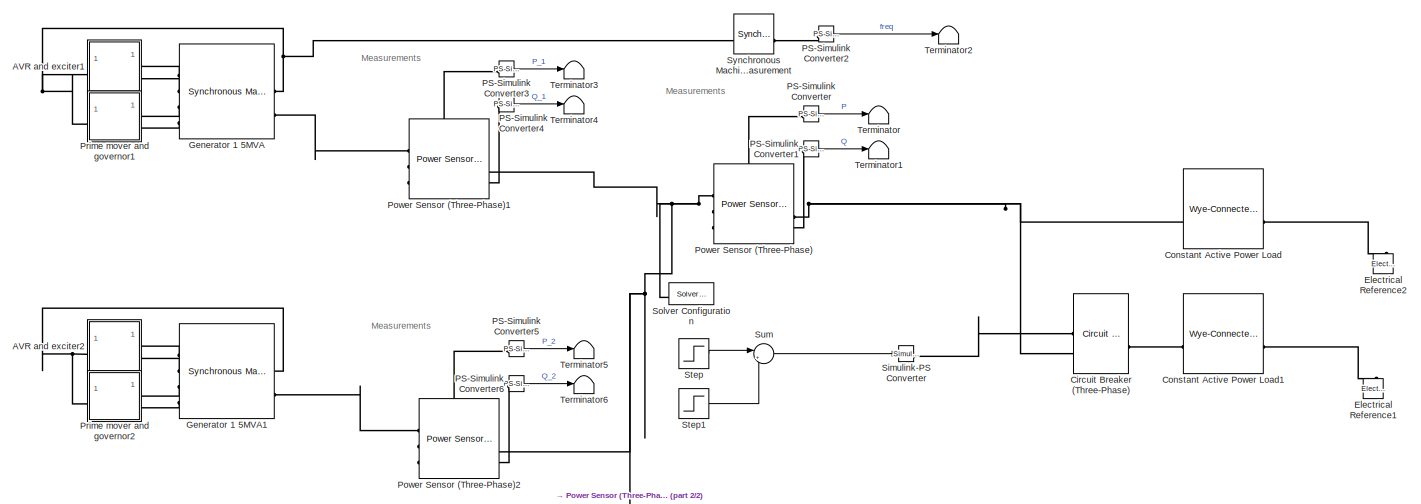
[diagram: root canvas - part 1/2, top right region]
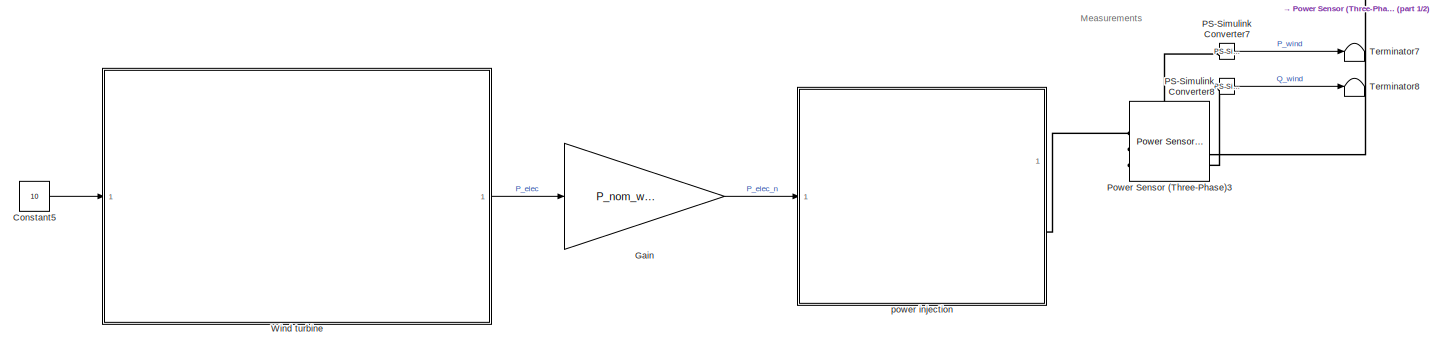
[diagram: root canvas - part 2/2, bottom center region]
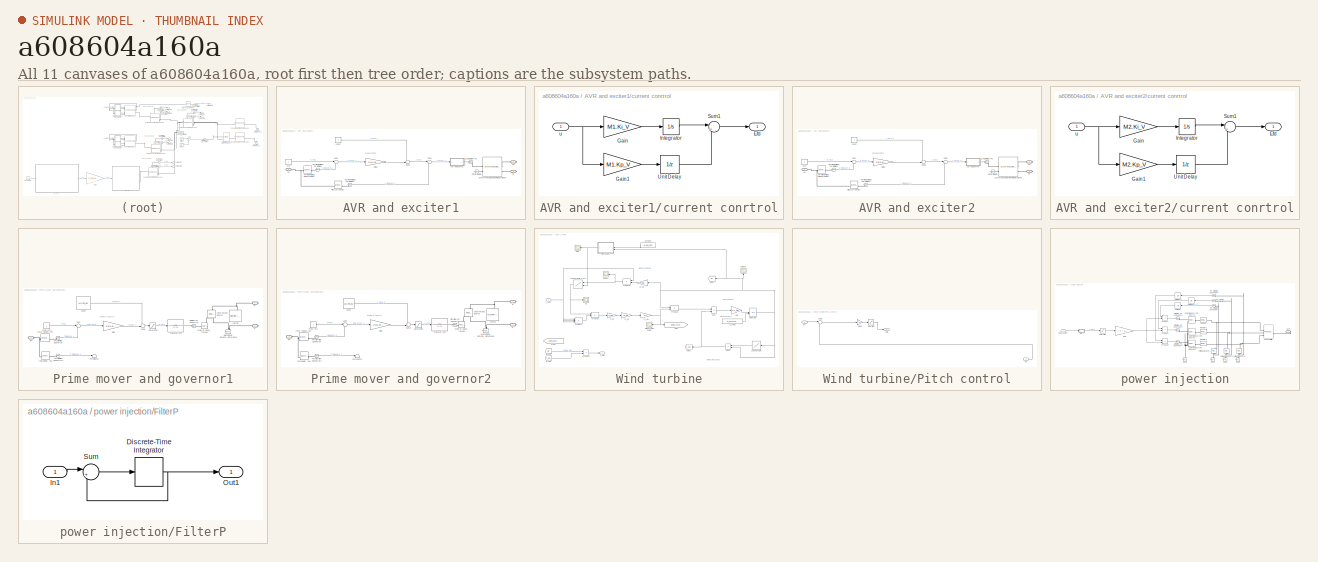
[diagram: thumbnail index - all 11 canvases of the model, root first then tree order]
MODEL slx_a608604a160a
KIND model
CONFIG AbsTol = auto
CONFIG EnableMultiTasking = off
CONFIG FixedStep = auto
CONFIG MaxStep = auto
CONFIG MinStep = auto
CONFIG RelTol = auto
CONFIG SampleTimeConstraint = Unconstrained
CONFIG SolverName = ode45
CONFIG StartTime = 0
CONFIG StopTime = 120
BLOCK [SubSystem] AVR and exciter1
  NameLocation = top
BLOCK [Reference] AVR and exciter1/E_FD Simulink-PS   REF=nesl_utility/Simulink-PS
Converter
  SourceBlock = nesl_utility/Simulink-PS\nConverter
  SourceType = Simulink-PS\nConverter
BLOCK [Gain] AVR and exciter1/Gain1
  Gain = 1/M1.droopV1
BLOCK [Reference] AVR and exciter1/PS Terminator  REF=fl_lib/Physical Signals/Sinks/PS Terminator
  NameLocation = top
  SourceBlock = fl_lib/Physical Signals/Sinks/PS Terminator
  SourceType = PS Terminator
BLOCK [Sum] AVR and exciter1/Sum
  Inputs = |+-
BLOCK [Sum] AVR and exciter1/Sum1
  Inputs = |+-
BLOCK [Sum] AVR and exciter1/Sum2
  Inputs = ++|
BLOCK [Reference] AVR and exciter1/Synchronous Machine Field Circuit (pu)  REF=ee_lib/Electromechanical/Synchronous/Synchronous Machine
Field Circuit
  SourceBlock = ee_lib/Electromechanical/Synchronous/Synchronous Machine\nField Circuit
  SourceType = Synchronous Machine\nField Circuit
BLOCK [Reference] AVR and exciter1/Terminal Voltage Measurement  REF=ee_lib/Electromechanical/Synchronous/Synchronous Machine
Measurement
  SourceBlock = ee_lib/Electromechanical/Synchronous/Synchronous Machine\nMeasurement
  SourceType = Synchronous Machine\nMeasurement
BLOCK [Reference] AVR and exciter1/Terminal Voltage PS-Simulink  REF=nesl_utility/PS-Simulink
Converter
  SourceBlock = nesl_utility/PS-Simulink\nConverter
  SourceType = PS-Simulink\nConverter
BLOCK [Reference] AVR and exciter1/Terminal Voltage PS-Simulink1  REF=nesl_utility/PS-Simulink
Converter
  SourceBlock = nesl_utility/PS-Simulink\nConverter
  SourceType = PS-Simulink\nConverter
BLOCK [Constant] AVR and exciter1/Vref
  NameLocation = top
BLOCK [Constant] AVR and exciter1/const
  NameLocation = top
BLOCK [SubSystem] AVR and exciter1/current conrtrol
BLOCK [Outport] AVR and exciter1/current conrtrol/Efd
BLOCK [Gain] AVR and exciter1/current conrtrol/Gain
  Gain = M1.Ki_V
BLOCK [Gain] AVR and exciter1/current conrtrol/Gain1
  Gain = M1.Kp_V
BLOCK [Integrator] AVR and exciter1/current conrtrol/Integrator
BLOCK [Sum] AVR and exciter1/current conrtrol/Sum1
  Inputs = |++
BLOCK [UnitDelay] AVR and exciter1/current conrtrol/Unit Delay
  HasFrameUpgradeWarning = on
  InitialCondition = 1
  SampleTime = -1
BLOCK [Inport] AVR and exciter1/current conrtrol/u
BLOCK [PMIOPort] AVR and exciter1/fd+
  Port = 2
  Side = Right
BLOCK [PMIOPort] AVR and exciter1/fd-
  Port = 3
  Side = Right
BLOCK [Reference] AVR and exciter1/field_current (pu)  REF=ee_lib/Electromechanical/Synchronous/Synchronous Machine
Measurement
  SourceBlock = ee_lib/Electromechanical/Synchronous/Synchronous Machine\nMeasurement
  SourceType = Synchronous Machine\nMeasurement
BLOCK [PMIOPort] AVR and exciter1/pu
  Side = Left
BLOCK [SubSystem] AVR and exciter2
  NameLocation = top
BLOCK [Reference] AVR and exciter2/E_FD Simulink-PS   REF=nesl_utility/Simulink-PS
Converter
  SourceBlock = nesl_utility/Simulink-PS\nConverter
  SourceType = Simulink-PS\nConverter
BLOCK [Gain] AVR and exciter2/Gain1
  Gain = 1/M2.droopV1
BLOCK [Reference] AVR and exciter2/PS Terminator  REF=fl_lib/Physical Signals/Sinks/PS Terminator
  NameLocation = top
  SourceBlock = fl_lib/Physical Signals/Sinks/PS Terminator
  SourceType = PS Terminator
BLOCK [Sum] AVR and exciter2/Sum
  Inputs = |+-
BLOCK [Sum] AVR and exciter2/Sum1
  Inputs = |+-
BLOCK [Sum] AVR and exciter2/Sum2
  Inputs = ++|
BLOCK [Reference] AVR and exciter2/Synchronous Machine Field Circuit (pu)  REF=ee_lib/Electromechanical/Synchronous/Synchronous Machine
Field Circuit
  SourceBlock = ee_lib/Electromechanical/Synchronous/Synchronous Machine\nField Circuit
  SourceType = Synchronous Machine\nField Circuit
BLOCK [Reference] AVR and exciter2/Terminal Voltage Measurement  REF=ee_lib/Electromechanical/Synchronous/Synchronous Machine
Measurement
  SourceBlock = ee_lib/Electromechanical/Synchronous/Synchronous Machine\nMeasurement
  SourceType = Synchronous Machine\nMeasurement
BLOCK [Reference] AVR and exciter2/Terminal Voltage PS-Simulink  REF=nesl_utility/PS-Simulink
Converter
  SourceBlock = nesl_utility/PS-Simulink\nConverter
  SourceType = PS-Simulink\nConverter
BLOCK [Reference] AVR and exciter2/Terminal Voltage PS-Simulink1  REF=nesl_utility/PS-Simulink
Converter
  SourceBlock = nesl_utility/PS-Simulink\nConverter
  SourceType = PS-Simulink\nConverter
BLOCK [Constant] AVR and exciter2/Vref
  NameLocation = top
BLOCK [Constant] AVR and exciter2/const
  NameLocation = top
BLOCK [SubSystem] AVR and exciter2/current conrtrol
BLOCK [Outport] AVR and exciter2/current conrtrol/Efd
BLOCK [Gain] AVR and exciter2/current conrtrol/Gain
  Gain = M2.Ki_V
BLOCK [Gain] AVR and exciter2/current conrtrol/Gain1
  Gain = M2.Kp_V
BLOCK [Integrator] AVR and exciter2/current conrtrol/Integrator
BLOCK [Sum] AVR and exciter2/current conrtrol/Sum1
  Inputs = |++
BLOCK [UnitDelay] AVR and exciter2/current conrtrol/Unit Delay
  HasFrameUpgradeWarning = on
  InitialCondition = 1
  SampleTime = -1
BLOCK [Inport] AVR and exciter2/current conrtrol/u
BLOCK [PMIOPort] AVR and exciter2/fd+
  Port = 2
  Side = Right
BLOCK [PMIOPort] AVR and exciter2/fd-
  Port = 3
  Side = Right
BLOCK [Reference] AVR and exciter2/field_current (pu)  REF=ee_lib/Electromechanical/Synchronous/Synchronous Machine
Measurement
  SourceBlock = ee_lib/Electromechanical/Synchronous/Synchronous Machine\nMeasurement
  SourceType = Synchronous Machine\nMeasurement
BLOCK [PMIOPort] AVR and exciter2/pu
  Side = Left
BLOCK [Reference] Circuit Breaker (Three-Phase)  REF=ee_lib/Switches & Breakers/Circuit Breaker
(Three-Phase)
  SourceBlock = ee_lib/Switches & Breakers/Circuit Breaker\n(Three-Phase)
  SourceType = Circuit Breaker\n(Three-Phase)
BLOCK [Reference] Constant Active Power Load  REF=ee_lib/Passive/RLC Assemblies/Wye-Connected Load
  SourceBlock = ee_lib/Passive/RLC Assemblies/Wye-Connected Load
  SourceType = Wye-Connected Load
BLOCK [Reference] Constant Active Power Load1  REF=ee_lib/Passive/RLC Assemblies/Wye-Connected Load
  SourceBlock = ee_lib/Passive/RLC Assemblies/Wye-Connected Load
  SourceType = Wye-Connected Load
BLOCK [Constant] Constant5
  Value = 10
BLOCK [Reference] Electrical Reference1  REF=fl_lib/Electrical/Electrical Elements/Electrical Reference
  NameLocation = right
  SourceBlock = fl_lib/Electrical/Electrical Elements/Electrical Reference
  SourceType = Electrical Reference
BLOCK [Reference] Electrical Reference2  REF=fl_lib/Electrical/Electrical Elements/Electrical Reference
  NameLocation = right
  SourceBlock = fl_lib/Electrical/Electrical Elements/Electrical Reference
  SourceType = Electrical Reference
BLOCK [Gain] Gain
  Gain = P_nom_wind / P_max_wind
BLOCK [Reference] Generator 1 5MVA  REF=ee_lib/Electromechanical/Synchronous/Synchronous Machine
Salient Pole
  SourceBlock = ee_lib/Electromechanical/Synchronous/Synchronous Machine\nSalient Pole
  SourceType = Synchronous Machine\nSalient Pole
BLOCK [Reference] Generator 1 5MVA1  REF=ee_lib/Electromechanical/Synchronous/Synchronous Machine
Salient Pole
  SourceBlock = ee_lib/Electromechanical/Synchronous/Synchronous Machine\nSalient Pole
  SourceType = Synchronous Machine\nSalient Pole
BLOCK [Reference] PS-Simulink Converter  REF=nesl_utility/PS-Simulink
Converter
  SourceBlock = nesl_utility/PS-Simulink\nConverter
  SourceType = PS-Simulink\nConverter
BLOCK [Reference] PS-Simulink Converter1  REF=nesl_utility/PS-Simulink
Converter
  SourceBlock = nesl_utility/PS-Simulink\nConverter
  SourceType = PS-Simulink\nConverter
BLOCK [Reference] PS-Simulink Converter2  REF=nesl_utility/PS-Simulink
Converter
  SourceBlock = nesl_utility/PS-Simulink\nConverter
  SourceType = PS-Simulink\nConverter
BLOCK [Reference] PS-Simulink Converter3  REF=nesl_utility/PS-Simulink
Converter
  SourceBlock = nesl_utility/PS-Simulink\nConverter
  SourceType = PS-Simulink\nConverter
BLOCK [Reference] PS-Simulink Converter4  REF=nesl_utility/PS-Simulink
Converter
  SourceBlock = nesl_utility/PS-Simulink\nConverter
  SourceType = PS-Simulink\nConverter
BLOCK [Reference] PS-Simulink Converter5  REF=nesl_utility/PS-Simulink
Converter
  SourceBlock = nesl_utility/PS-Simulink\nConverter
  SourceType = PS-Simulink\nConverter
BLOCK [Reference] PS-Simulink Converter6  REF=nesl_utility/PS-Simulink
Converter
  SourceBlock = nesl_utility/PS-Simulink\nConverter
  SourceType = PS-Simulink\nConverter
BLOCK [Reference] PS-Simulink Converter7  REF=nesl_utility/PS-Simulink
Converter
  SourceBlock = nesl_utility/PS-Simulink\nConverter
  SourceType = PS-Simulink\nConverter
BLOCK [Reference] PS-Simulink Converter8  REF=nesl_utility/PS-Simulink
Converter
  SourceBlock = nesl_utility/PS-Simulink\nConverter
  SourceType = PS-Simulink\nConverter
BLOCK [Reference] Power Sensor (Three-Phase)  REF=ee_lib/Sensors &
Transducers/Power Sensor
(Three-Phase)
  SourceBlock = ee_lib/Sensors &\nTransducers/Power Sensor\n(Three-Phase)
  SourceType = Power Sensor\n(Three-Phase)
BLOCK [Reference] Power Sensor (Three-Phase)1  REF=ee_lib/Sensors &
Transducers/Power Sensor
(Three-Phase)
  SourceBlock = ee_lib/Sensors &\nTransducers/Power Sensor\n(Three-Phase)
  SourceType = Power Sensor\n(Three-Phase)
BLOCK [Reference] Power Sensor (Three-Phase)2  REF=ee_lib/Sensors &
Transducers/Power Sensor
(Three-Phase)
  SourceBlock = ee_lib/Sensors &\nTransducers/Power Sensor\n(Three-Phase)
  SourceType = Power Sensor\n(Three-Phase)
BLOCK [Reference] Power Sensor (Three-Phase)3  REF=ee_lib/Sensors &
Transducers/Power Sensor
(Three-Phase)
  SourceBlock = ee_lib/Sensors &\nTransducers/Power Sensor\n(Three-Phase)
  SourceType = Power Sensor\n(Three-Phase)
BLOCK [SubSystem] Prime mover and governor1
BLOCK [PMIOPort] Prime mover and governor1/C
  Port = 2
  Side = Right
BLOCK [Constant] Prime mover and governor1/Freq ref1
  NameLocation = top
BLOCK [Gain] Prime mover and governor1/Gain
  Gain = 1/M1.droopP1
BLOCK [Reference] Prime mover and governor1/Ideal Torque Source  REF=fl_lib/Mechanical/Mechanical Sources/Ideal Torque Source
  NameLocation = left
  SourceBlock = fl_lib/Mechanical/Mechanical Sources/Ideal Torque Source
  SourceType = Ideal Torque Source
BLOCK [Reference] Prime mover and governor1/Inertia  REF=ee_lib/Electromechanical/Mechanical/Machine
Inertia
  NameLocation = right
  SourceBlock = ee_lib/Electromechanical/Mechanical/Machine\nInertia
  SourceType = Machine\nInertia
BLOCK [Reference] Prime mover and governor1/Mechanical Rotational Reference  REF=fl_lib/Mechanical/Rotational Elements/Mechanical
Rotational Reference
  NameLocation = right
  SourceBlock = fl_lib/Mechanical/Rotational Elements/Mechanical\nRotational Reference
  SourceType = Mechanical\nRotational Reference
BLOCK [Reference] Prime mover and governor1/PS-Simulink Converter  REF=nesl_utility/PS-Simulink
Converter
  SourceBlock = nesl_utility/PS-Simulink\nConverter
  SourceType = PS-Simulink\nConverter
BLOCK [Reference] Prime mover and governor1/PS-Simulink Converter1  REF=nesl_utility/PS-Simulink
Converter
  SourceBlock = nesl_utility/PS-Simulink\nConverter
  SourceType = PS-Simulink\nConverter
BLOCK [PMIOPort] Prime mover and governor1/R
  Side = Right
BLOCK [Saturate] Prime mover and governor1/Saturation
  LowerLimit = -1
  UpperLimit = 1
BLOCK [Reference] Prime mover and governor1/Simulink-PS Converter  REF=nesl_utility/Simulink-PS
Converter
  NameLocation = top
  SourceBlock = nesl_utility/Simulink-PS\nConverter
  SourceType = Simulink-PS\nConverter
BLOCK [Sum] Prime mover and governor1/Sum
  Inputs = |+-
  NameLocation = top
BLOCK [Sum] Prime mover and governor1/Sum3
  Inputs = ++|
BLOCK [Terminator] Prime mover and governor1/Terminator
BLOCK [TransferFcn] Prime mover and governor1/Transfer Fcn
  Denominator = [1 1]
BLOCK [Constant] Prime mover and governor1/const
  NameLocation = top
  Value = M1.P0_pu
BLOCK [PMIOPort] Prime mover and governor1/pu
  Port = 3
  Side = Left
BLOCK [Reference] Prime mover and governor1/real power (pu)  REF=ee_lib/Electromechanical/Synchronous/Synchronous Machine
Measurement
  SourceBlock = ee_lib/Electromechanical/Synchronous/Synchronous Machine\nMeasurement
  SourceType = Synchronous Machine\nMeasurement
BLOCK [Reference] Prime mover and governor1/rotor speed (pu)  REF=ee_lib/Electromechanical/Synchronous/Synchronous Machine
Measurement
  SourceBlock = ee_lib/Electromechanical/Synchronous/Synchronous Machine\nMeasurement
  SourceType = Synchronous Machine\nMeasurement
BLOCK [Reference] Prime mover and governor1/scale by base_torque  REF=fl_lib/Physical Signals/Functions/PS Gain
  SourceBlock = fl_lib/Physical Signals/Functions/PS Gain
  SourceType = PS Gain
BLOCK [SubSystem] Prime mover and governor2
BLOCK [PMIOPort] Prime mover and governor2/C
  Port = 2
  Side = Right
BLOCK [Constant] Prime mover and governor2/Freq ref1
  NameLocation = top
BLOCK [Gain] Prime mover and governor2/Gain
  Gain = 1/M2.droopP1
BLOCK [Reference] Prime mover and governor2/Ideal Torque Source  REF=fl_lib/Mechanical/Mechanical Sources/Ideal Torque Source
  NameLocation = left
  SourceBlock = fl_lib/Mechanical/Mechanical Sources/Ideal Torque Source
  SourceType = Ideal Torque Source
BLOCK [Reference] Prime mover and governor2/Inertia  REF=ee_lib/Electromechanical/Mechanical/Machine
Inertia
  NameLocation = right
  SourceBlock = ee_lib/Electromechanical/Mechanical/Machine\nInertia
  SourceType = Machine\nInertia
BLOCK [Reference] Prime mover and governor2/Mechanical Rotational Reference  REF=fl_lib/Mechanical/Rotational Elements/Mechanical
Rotational Reference
  NameLocation = right
  SourceBlock = fl_lib/Mechanical/Rotational Elements/Mechanical\nRotational Reference
  SourceType = Mechanical\nRotational Reference
BLOCK [Reference] Prime mover and governor2/PS-Simulink Converter  REF=nesl_utility/PS-Simulink
Converter
  SourceBlock = nesl_utility/PS-Simulink\nConverter
  SourceType = PS-Simulink\nConverter
BLOCK [Reference] Prime mover and governor2/PS-Simulink Converter1  REF=nesl_utility/PS-Simulink
Converter
  SourceBlock = nesl_utility/PS-Simulink\nConverter
  SourceType = PS-Simulink\nConverter
BLOCK [PMIOPort] Prime mover and governor2/R
  Side = Right
BLOCK [Saturate] Prime mover and governor2/Saturation
  LowerLimit = -1
  UpperLimit = 1
BLOCK [Reference] Prime mover and governor2/Simulink-PS Converter  REF=nesl_utility/Simulink-PS
Converter
  NameLocation = top
  SourceBlock = nesl_utility/Simulink-PS\nConverter
  SourceType = Simulink-PS\nConverter
BLOCK [Sum] Prime mover and governor2/Sum
  Inputs = |+-
  NameLocation = top
BLOCK [Sum] Prime mover and governor2/Sum3
  Inputs = ++|
BLOCK [Terminator] Prime mover and governor2/Terminator
BLOCK [TransferFcn] Prime mover and governor2/Transfer Fcn
  Denominator = [1 1]
BLOCK [Constant] Prime mover and governor2/const
  NameLocation = top
  Value = M2.P0_pu
BLOCK [PMIOPort] Prime mover and governor2/pu
  Port = 3
  Side = Left
BLOCK [Reference] Prime mover and governor2/real power (pu)  REF=ee_lib/Electromechanical/Synchronous/Synchronous Machine
Measurement
  SourceBlock = ee_lib/Electromechanical/Synchronous/Synchronous Machine\nMeasurement
  SourceType = Synchronous Machine\nMeasurement
BLOCK [Reference] Prime mover and governor2/rotor speed (pu)  REF=ee_lib/Electromechanical/Synchronous/Synchronous Machine
Measurement
  SourceBlock = ee_lib/Electromechanical/Synchronous/Synchronous Machine\nMeasurement
  SourceType = Synchronous Machine\nMeasurement
BLOCK [Reference] Prime mover and governor2/scale by base_torque  REF=fl_lib/Physical Signals/Functions/PS Gain
  SourceBlock = fl_lib/Physical Signals/Functions/PS Gain
  SourceType = PS Gain
BLOCK [Reference] Simulink-PS Converter  REF=nesl_utility/Simulink-PS
Converter
  SourceBlock = nesl_utility/Simulink-PS\nConverter
  SourceType = Simulink-PS\nConverter
BLOCK [Reference] Solver Configuration  REF=nesl_utility/Solver
Configuration
  SourceBlock = nesl_utility/Solver\nConfiguration
  SourceType = Solver\nConfiguration
BLOCK [Step] Step
  After = 0
  Before = 1
  SampleTime = 0
  Time = close_time
BLOCK [Step] Step1
  SampleTime = 0
  Time = open_time
BLOCK [Sum] Sum
  Inputs = |++
BLOCK [Reference] Synchronous Machine Measurement  REF=ee_lib/Electromechanical/Synchronous/Synchronous Machine
Measurement
  SourceBlock = ee_lib/Electromechanical/Synchronous/Synchronous Machine\nMeasurement
  SourceType = Synchronous Machine\nMeasurement
BLOCK [Terminator] Terminator
BLOCK [Terminator] Terminator1
BLOCK [Terminator] Terminator2
BLOCK [Terminator] Terminator3
BLOCK [Terminator] Terminator4
BLOCK [Terminator] Terminator5
BLOCK [Terminator] Terminator6
BLOCK [Terminator] Terminator7
BLOCK [Terminator] Terminator8
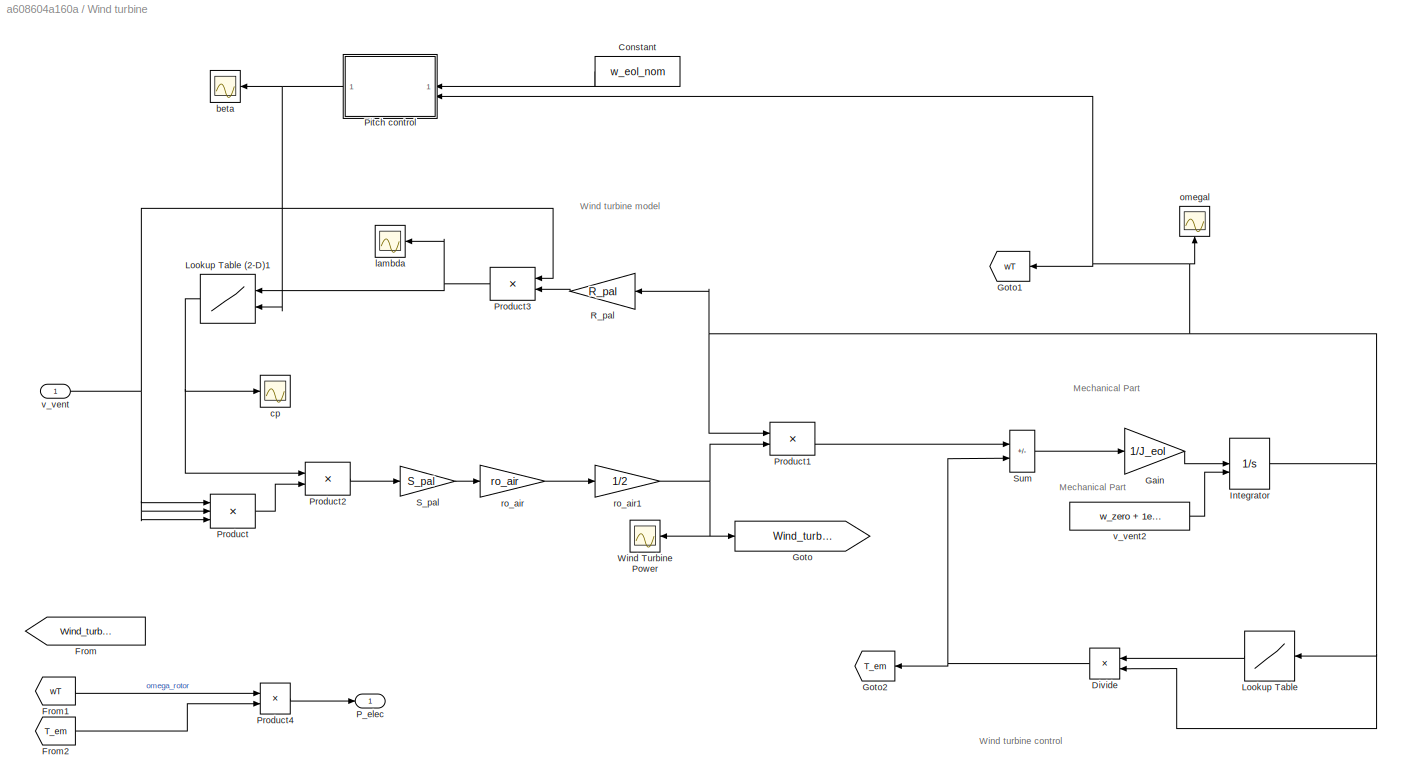
BLOCK [SubSystem] Wind turbine
BLOCK [Constant] Wind turbine/Constant
  Value = w_eol_nom
BLOCK [Product] Wind turbine/Divide
  InputSameDT = on
  Inputs = */
  OutDataTypeStr = Inherit: Same as first input
  RndMeth = Zero
BLOCK [From] Wind turbine/From
  CloseFcn = tagdialog Close
  GotoTag = Wind_turbine_Power
BLOCK [From] Wind turbine/From1
  CloseFcn = tagdialog Close
  GotoTag = wT
BLOCK [From] Wind turbine/From2
  CloseFcn = tagdialog Close
  GotoTag = T_em
BLOCK [Gain] Wind turbine/Gain
  Gain = 1/J_eol
  OutDataTypeStr = Inherit: Same as input
  ParamDataTypeStr = Inherit: Same as input
  SaturateOnIntegerOverflow = on
BLOCK [Goto] Wind turbine/Goto
  GotoTag = Wind_turbine_Power
BLOCK [Goto] Wind turbine/Goto1
  GotoTag = wT
BLOCK [Goto] Wind turbine/Goto2
  GotoTag = T_em
BLOCK [Integrator] Wind turbine/Integrator
  InitialConditionSource = external
BLOCK [Lookup] Wind turbine/Lookup Table
  InputValues = omega_tab
  Table = P_opt_tab2
BLOCK [Lookup2D] Wind turbine/Lookup Table (2-D)1
  ColumnIndex = beta_ref
  RowIndex = lambda_ref
  Table = Cp_ref
BLOCK [Outport] Wind turbine/P_elec
BLOCK [SubSystem] Wind turbine/Pitch control
BLOCK [Gain] Wind turbine/Pitch control/Gain1
  Gain = -200
BLOCK [Inport] Wind turbine/Pitch control/In1
BLOCK [Inport] Wind turbine/Pitch control/In2
  Port = 2
BLOCK [Outport] Wind turbine/Pitch control/Out1
BLOCK [Saturate] Wind turbine/Pitch control/Saturation
  LowerLimit = 0
  UpperLimit = inf
BLOCK [Sum] Wind turbine/Pitch control/Sum1
  Inputs = |+-
BLOCK [Product] Wind turbine/Product
  InputSameDT = on
  Inputs = 3
  OutDataTypeStr = Inherit: Same as first input
  RndMeth = Zero
  SaturateOnIntegerOverflow = on
BLOCK [Product] Wind turbine/Product1
  InputSameDT = on
  Inputs = /*
  OutDataTypeStr = Inherit: Same as first input
  RndMeth = Zero
  SaturateOnIntegerOverflow = on
BLOCK [Product] Wind turbine/Product2
  InputSameDT = on
  OutDataTypeStr = Inherit: Same as first input
  RndMeth = Zero
  SaturateOnIntegerOverflow = on
BLOCK [Product] Wind turbine/Product3
  InputSameDT = on
  Inputs = /*
  OutDataTypeStr = Inherit: Same as first input
  RndMeth = Zero
  SaturateOnIntegerOverflow = on
BLOCK [Product] Wind turbine/Product4
BLOCK [Gain] Wind turbine/R_pal
  Gain = R_pal
  OutDataTypeStr = Inherit: Same as input
  ParamDataTypeStr = Inherit: Same as input
  SaturateOnIntegerOverflow = on
BLOCK [Gain] Wind turbine/S_pal
  Gain = S_pal
  OutDataTypeStr = Inherit: Same as input
  ParamDataTypeStr = Inherit: Same as input
  SaturateOnIntegerOverflow = on
BLOCK [Sum] Wind turbine/Sum
  IconShape = rectangular
  InputSameDT = on
  Inputs = +-
  OutDataTypeStr = Inherit: Same as first input
  SaturateOnIntegerOverflow = on
BLOCK [Scope] Wind turbine/Wind Turbine Power
  Floating = off
  NameLocation = left
  NumInputPorts = 1
  ScopeSpecificationString = Simulink.scopes.TimeScopeBlockCfg('CurrentConfiguration', extmgr.ConfigurationSet(extmgr.Configuration('Core','General UI',true),extmgr.Configuration('Core','Source UI',true),extmgr.Configuration('Sources','WiredSimulink',true,'DataLoggingVariableName','ScopeData3'),extmgr.Configuration('Visuals','Time Domain',true,'SerializedDisplays',{struct('MinYLimReal','8318.13591','MaxYLimReal','263665.12868...<+1396ch>
BLOCK [Scope] Wind turbine/beta
  Floating = off
  NumInputPorts = 1
  ScopeSpecificationString = Simulink.scopes.TimeScopeBlockCfg('CurrentConfiguration', extmgr.ConfigurationSet(extmgr.Configuration('Core','General UI',true),extmgr.Configuration('Core','Source UI',true),extmgr.Configuration('Sources','WiredSimulink',true,'DataLoggingVariableName','ScopeData4'),extmgr.Configuration('Visuals','Time Domain',true,'SerializedDisplays',{struct('MinYLimReal','-1.40555','MaxYLimReal','12.64997','YLa...<+1409ch>
BLOCK [Scope] Wind turbine/cp
  Floating = off
  NumInputPorts = 1
  ScopeSpecificationString = Simulink.scopes.TimeScopeBlockCfg('CurrentConfiguration', extmgr.ConfigurationSet(extmgr.Configuration('Core','General UI',true),extmgr.Configuration('Core','Source UI',true),extmgr.Configuration('Sources','WiredSimulink',true,'DataLoggingVariableName','ScopeData1','DataLoggingSaveFormat','StructureWithTime','DataLoggingDecimation','1','DataLoggingDecimateData',true),extmgr.Configuration('Visuals'...<+1723ch>
BLOCK [Scope] Wind turbine/lambda
  Floating = off
  NumInputPorts = 1
  ScopeSpecificationString = Simulink.scopes.TimeScopeBlockCfg('CurrentConfiguration', extmgr.ConfigurationSet(extmgr.Configuration('Core','General UI',true),extmgr.Configuration('Core','Source UI',true),extmgr.Configuration('Sources','WiredSimulink',true,'DataLoggingVariableName','ScopeData2','DataLoggingSaveFormat','StructureWithTime','DataLoggingDecimation','1','DataLoggingDecimateData',true),extmgr.Configuration('Visuals'...<+1704ch>
BLOCK [Scope] Wind turbine/omegal  
  Floating = off
  NameLocation = left
  NumInputPorts = 1
  ScopeSpecificationString = Simulink.scopes.TimeScopeBlockCfg('CurrentConfiguration', extmgr.ConfigurationSet(extmgr.Configuration('Core','General UI',true),extmgr.Configuration('Core','Source UI',true),extmgr.Configuration('Sources','WiredSimulink',true,'DataLogging',true,'DataLoggingVariableName','omega_pal','DataLoggingSaveFormat','Array','DataLoggingMaxPoints','2000','DataLoggingDecimation','1','DataLoggingDecimateData',...<+1790ch>
BLOCK [Gain] Wind turbine/ro_air
  Gain = ro_air
  OutDataTypeStr = Inherit: Same as input
  ParamDataTypeStr = Inherit: Same as input
  SaturateOnIntegerOverflow = on
BLOCK [Gain] Wind turbine/ro_air1
  Gain = 1/2
  OutDataTypeStr = Inherit: Same as input
  ParamDataTypeStr = Inherit: Same as input
  SaturateOnIntegerOverflow = on
BLOCK [Inport] Wind turbine/v_vent
BLOCK [Constant] Wind turbine/v_vent2
  Value = w_zero + 1e-6
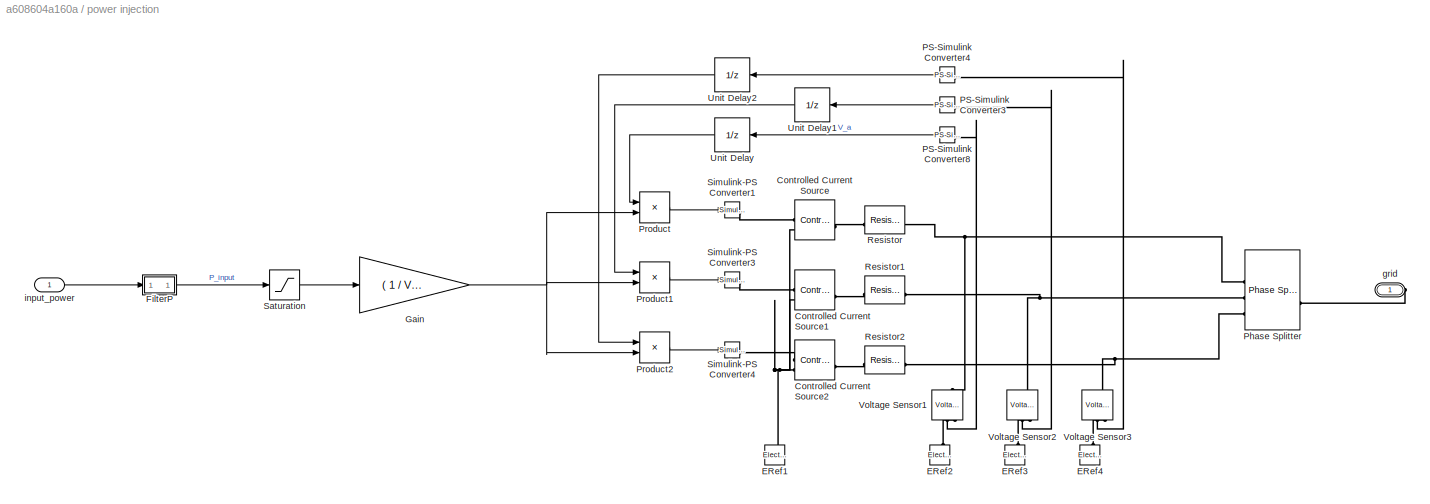
BLOCK [SubSystem] power injection
BLOCK [Reference] power injection/Controlled Current Source  REF=fl_lib/Electrical/Electrical Sources/Controlled Current
Source
  SourceBlock = fl_lib/Electrical/Electrical Sources/Controlled Current\nSource
  SourceType = Controlled Current\nSource
BLOCK [Reference] power injection/Controlled Current Source1  REF=fl_lib/Electrical/Electrical Sources/Controlled Current
Source
  SourceBlock = fl_lib/Electrical/Electrical Sources/Controlled Current\nSource
  SourceType = Controlled Current\nSource
BLOCK [Reference] power injection/Controlled Current Source2  REF=fl_lib/Electrical/Electrical Sources/Controlled Current
Source
  SourceBlock = fl_lib/Electrical/Electrical Sources/Controlled Current\nSource
  SourceType = Controlled Current\nSource
BLOCK [Reference] power injection/ERef1  REF=fl_lib/Electrical/Electrical Elements/Electrical Reference
  NameLocation = right
  SourceBlock = fl_lib/Electrical/Electrical Elements/Electrical Reference
  SourceType = Electrical Reference
BLOCK [Reference] power injection/ERef2  REF=fl_lib/Electrical/Electrical Elements/Electrical Reference
  NameLocation = right
  SourceBlock = fl_lib/Electrical/Electrical Elements/Electrical Reference
  SourceType = Electrical Reference
BLOCK [Reference] power injection/ERef3  REF=fl_lib/Electrical/Electrical Elements/Electrical Reference
  NameLocation = right
  SourceBlock = fl_lib/Electrical/Electrical Elements/Electrical Reference
  SourceType = Electrical Reference
BLOCK [Reference] power injection/ERef4  REF=fl_lib/Electrical/Electrical Elements/Electrical Reference
  NameLocation = right
  SourceBlock = fl_lib/Electrical/Electrical Elements/Electrical Reference
  SourceType = Electrical Reference
BLOCK [SubSystem] power injection/FilterP
BLOCK [DiscreteIntegrator] power injection/FilterP/Discrete-Time Integrator
  ICPrevOutput = DiscIntNeverNeededParam
  ICPrevScaledInput = DiscIntNeverNeededParam
  InitialConditionSetting = Auto
  SampleTime = -1
  gainval = 20
BLOCK [Inport] power injection/FilterP/In1
BLOCK [Outport] power injection/FilterP/Out1
BLOCK [Sum] power injection/FilterP/Sum
  Inputs = |+-
BLOCK [Gain] power injection/Gain
  Gain = ( 1 / V_ref ) ^ 2
BLOCK [Reference] power injection/PS-Simulink Converter3  REF=nesl_utility/PS-Simulink
Converter
  NameLocation = top
  SourceBlock = nesl_utility/PS-Simulink\nConverter
  SourceType = PS-Simulink\nConverter
BLOCK [Reference] power injection/PS-Simulink Converter4  REF=nesl_utility/PS-Simulink
Converter
  NameLocation = top
  SourceBlock = nesl_utility/PS-Simulink\nConverter
  SourceType = PS-Simulink\nConverter
BLOCK [Reference] power injection/PS-Simulink Converter8  REF=nesl_utility/PS-Simulink
Converter
  NameLocation = top
  SourceBlock = nesl_utility/PS-Simulink\nConverter
  SourceType = PS-Simulink\nConverter
BLOCK [Reference] power injection/Phase Splitter  REF=ee_lib/Connectors &
References/Phase Splitter
  SourceBlock = ee_lib/Connectors &\nReferences/Phase Splitter
  SourceType = Phase Splitter
BLOCK [Product] power injection/Product
BLOCK [Product] power injection/Product1
BLOCK [Product] power injection/Product2
BLOCK [Reference] power injection/Resistor  REF=fl_lib/Electrical/Electrical Elements/Resistor
  SourceBlock = fl_lib/Electrical/Electrical Elements/Resistor
  SourceType = Resistor
BLOCK [Reference] power injection/Resistor1  REF=fl_lib/Electrical/Electrical Elements/Resistor
  SourceBlock = fl_lib/Electrical/Electrical Elements/Resistor
  SourceType = Resistor
BLOCK [Reference] power injection/Resistor2  REF=fl_lib/Electrical/Electrical Elements/Resistor
  SourceBlock = fl_lib/Electrical/Electrical Elements/Resistor
  SourceType = Resistor
BLOCK [Saturate] power injection/Saturation
  LowerLimit = 0
  UpperLimit = P_nom_wind
BLOCK [Reference] power injection/Simulink-PS Converter1  REF=nesl_utility/Simulink-PS
Converter
  SourceBlock = nesl_utility/Simulink-PS\nConverter
  SourceType = Simulink-PS\nConverter
BLOCK [Reference] power injection/Simulink-PS Converter3  REF=nesl_utility/Simulink-PS
Converter
  SourceBlock = nesl_utility/Simulink-PS\nConverter
  SourceType = Simulink-PS\nConverter
BLOCK [Reference] power injection/Simulink-PS Converter4  REF=nesl_utility/Simulink-PS
Converter
  SourceBlock = nesl_utility/Simulink-PS\nConverter
  SourceType = Simulink-PS\nConverter
BLOCK [UnitDelay] power injection/Unit Delay
  HasFrameUpgradeWarning = on
  SampleTime = -1
BLOCK [UnitDelay] power injection/Unit Delay1
  HasFrameUpgradeWarning = on
  SampleTime = -1
BLOCK [UnitDelay] power injection/Unit Delay2
  HasFrameUpgradeWarning = on
  SampleTime = -1
BLOCK [Reference] power injection/Voltage Sensor1  REF=fl_lib/Electrical/Electrical Sensors/Voltage Sensor
  NameLocation = right
  SourceBlock = fl_lib/Electrical/Electrical Sensors/Voltage Sensor
  SourceType = Voltage Sensor
BLOCK [Reference] power injection/Voltage Sensor2  REF=fl_lib/Electrical/Electrical Sensors/Voltage Sensor
  NameLocation = right
  SourceBlock = fl_lib/Electrical/Electrical Sensors/Voltage Sensor
  SourceType = Voltage Sensor
BLOCK [Reference] power injection/Voltage Sensor3  REF=fl_lib/Electrical/Electrical Sensors/Voltage Sensor
  NameLocation = right
  SourceBlock = fl_lib/Electrical/Electrical Sensors/Voltage Sensor
  SourceType = Voltage Sensor
BLOCK [PMIOPort] power injection/grid
  Side = Right
BLOCK [Inport] power injection/input_power
ANNOTATION (root): Measurements
ANNOTATION AVR and exciter1: Droop V control
ANNOTATION AVR and exciter2: Droop V control
ANNOTATION Prime mover and governor1: Droop P control
ANNOTATION Prime mover and governor2: Droop P control
ANNOTATION Wind turbine: Mechanical Part
ANNOTATION Wind turbine: Wind turbine control
ANNOTATION Wind turbine: Wind turbine model
LINE AVR and exciter1/Gain1:1 -> AVR and exciter1/Sum2:2
LINE AVR and exciter1/Sum1:1 -> AVR and exciter1/current conrtrol:1
LINE AVR and exciter1/Sum2:1 -> AVR and exciter1/Sum1:1
LINE AVR and exciter1/Sum:1 -> AVR and exciter1/Gain1:1
LINE AVR and exciter1/Terminal Voltage PS-Simulink1:1 -> AVR and exciter1/Sum1:2
LINE AVR and exciter1/Terminal Voltage PS-Simulink:1 -> AVR and exciter1/Sum:2
LINE AVR and exciter1/Vref:1 -> AVR and exciter1/Sum:1
LINE AVR and exciter1/const:1 -> AVR and exciter1/Sum2:1
LINE AVR and exciter1/current conrtrol/Gain1:1 -> AVR and exciter1/current conrtrol/Unit Delay:1
LINE AVR and exciter1/current conrtrol/Gain:1 -> AVR and exciter1/current conrtrol/Integrator:1
LINE AVR and exciter1/current conrtrol/Integrator:1 -> AVR and exciter1/current conrtrol/Sum1:1
LINE AVR and exciter1/current conrtrol/Sum1:1 -> AVR and exciter1/current conrtrol/Efd:1
LINE AVR and exciter1/current conrtrol/Unit Delay:1 -> AVR and exciter1/current conrtrol/Sum1:2
NET AVR and exciter1/current conrtrol/u:1 -> AVR and exciter1/current conrtrol/Gain1:1, AVR and exciter1/current conrtrol/Gain:1
LINE AVR and exciter1/current conrtrol:1 -> AVR and exciter1/E_FD Simulink-PS :1
LINE AVR and exciter2/Gain1:1 -> AVR and exciter2/Sum2:2
LINE AVR and exciter2/Sum1:1 -> AVR and exciter2/current conrtrol:1
LINE AVR and exciter2/Sum2:1 -> AVR and exciter2/Sum1:1
LINE AVR and exciter2/Sum:1 -> AVR and exciter2/Gain1:1
LINE AVR and exciter2/Terminal Voltage PS-Simulink1:1 -> AVR and exciter2/Sum1:2
LINE AVR and exciter2/Terminal Voltage PS-Simulink:1 -> AVR and exciter2/Sum:2
LINE AVR and exciter2/Vref:1 -> AVR and exciter2/Sum:1
LINE AVR and exciter2/const:1 -> AVR and exciter2/Sum2:1
LINE AVR and exciter2/current conrtrol/Gain1:1 -> AVR and exciter2/current conrtrol/Unit Delay:1
LINE AVR and exciter2/current conrtrol/Gain:1 -> AVR and exciter2/current conrtrol/Integrator:1
LINE AVR and exciter2/current conrtrol/Integrator:1 -> AVR and exciter2/current conrtrol/Sum1:1
LINE AVR and exciter2/current conrtrol/Sum1:1 -> AVR and exciter2/current conrtrol/Efd:1
LINE AVR and exciter2/current conrtrol/Unit Delay:1 -> AVR and exciter2/current conrtrol/Sum1:2
NET AVR and exciter2/current conrtrol/u:1 -> AVR and exciter2/current conrtrol/Gain1:1, AVR and exciter2/current conrtrol/Gain:1
LINE AVR and exciter2/current conrtrol:1 -> AVR and exciter2/E_FD Simulink-PS :1
LINE Constant5:1 -> Wind turbine:1
LINE Gain:1 -> power injection:1
LINE PS-Simulink Converter1:1 -> Terminator1:1
LINE PS-Simulink Converter2:1 -> Terminator2:1
LINE PS-Simulink Converter3:1 -> Terminator3:1
LINE PS-Simulink Converter4:1 -> Terminator4:1
LINE PS-Simulink Converter5:1 -> Terminator5:1
LINE PS-Simulink Converter6:1 -> Terminator6:1
LINE PS-Simulink Converter7:1 -> Terminator7:1
LINE PS-Simulink Converter8:1 -> Terminator8:1
LINE PS-Simulink Converter:1 -> Terminator:1
LINE Prime mover and governor1/Freq ref1:1 -> Prime mover and governor1/Sum:1
LINE Prime mover and governor1/Gain:1 -> Prime mover and governor1/Sum3:2
LINE Prime mover and governor1/PS-Simulink Converter1:1 -> Prime mover and governor1/Terminator:1
LINE Prime mover and governor1/PS-Simulink Converter:1 -> Prime mover and governor1/Sum:2
LINE Prime mover and governor1/Saturation:1 -> Prime mover and governor1/Transfer Fcn:1
LINE Prime mover and governor1/Sum3:1 -> Prime mover and governor1/Saturation:1
LINE Prime mover and governor1/Sum:1 -> Prime mover and governor1/Gain:1
LINE Prime mover and governor1/Transfer Fcn:1 -> Prime mover and governor1/Simulink-PS Converter:1
LINE Prime mover and governor1/const:1 -> Prime mover and governor1/Sum3:1
LINE Prime mover and governor2/Freq ref1:1 -> Prime mover and governor2/Sum:1
LINE Prime mover and governor2/Gain:1 -> Prime mover and governor2/Sum3:2
LINE Prime mover and governor2/PS-Simulink Converter1:1 -> Prime mover and governor2/Terminator:1
LINE Prime mover and governor2/PS-Simulink Converter:1 -> Prime mover and governor2/Sum:2
LINE Prime mover and governor2/Saturation:1 -> Prime mover and governor2/Transfer Fcn:1
LINE Prime mover and governor2/Sum3:1 -> Prime mover and governor2/Saturation:1
LINE Prime mover and governor2/Sum:1 -> Prime mover and governor2/Gain:1
LINE Prime mover and governor2/Transfer Fcn:1 -> Prime mover and governor2/Simulink-PS Converter:1
LINE Prime mover and governor2/const:1 -> Prime mover and governor2/Sum3:1
LINE Step1:1 -> Sum:2
LINE Step:1 -> Sum:1
LINE Sum:1 -> Simulink-PS Converter:1
LINE Wind turbine/Constant:1 -> Wind turbine/Pitch control:1
NET Wind turbine/Divide:1 -> Wind turbine/Goto2:1, Wind turbine/Sum:2
LINE Wind turbine/From1:1 -> Wind turbine/Product4:1
LINE Wind turbine/From2:1 -> Wind turbine/Product4:2
LINE Wind turbine/Gain:1 -> Wind turbine/Integrator:1
NET Wind turbine/Integrator:1 -> Wind turbine/Divide:2, Wind turbine/Goto1:1, Wind turbine/Lookup Table:1, Wind turbine/Pitch control:2, Wind turbine/Product1:1, Wind turbine/R_pal:1, Wind turbine/omegal  :1
NET Wind turbine/Lookup Table (2-D)1:1 -> Wind turbine/Product2:1, Wind turbine/cp:1
LINE Wind turbine/Lookup Table:1 -> Wind turbine/Divide:1
LINE Wind turbine/Pitch control/Gain1:1 -> Wind turbine/Pitch control/Saturation:1
LINE Wind turbine/Pitch control/In1:1 -> Wind turbine/Pitch control/Sum1:1
LINE Wind turbine/Pitch control/In2:1 -> Wind turbine/Pitch control/Sum1:2
LINE Wind turbine/Pitch control/Saturation:1 -> Wind turbine/Pitch control/Out1:1
LINE Wind turbine/Pitch control/Sum1:1 -> Wind turbine/Pitch control/Gain1:1
NET Wind turbine/Pitch control:1 -> Wind turbine/Lookup Table (2-D)1:2, Wind turbine/beta:1
LINE Wind turbine/Product1:1 -> Wind turbine/Sum:1
LINE Wind turbine/Product2:1 -> Wind turbine/S_pal:1
NET Wind turbine/Product3:1 -> Wind turbine/Lookup Table (2-D)1:1, Wind turbine/lambda:1
LINE Wind turbine/Product4:1 -> Wind turbine/P_elec:1
LINE Wind turbine/Product:1 -> Wind turbine/Product2:2
LINE Wind turbine/R_pal:1 -> Wind turbine/Product3:2
LINE Wind turbine/S_pal:1 -> Wind turbine/ro_air:1
LINE Wind turbine/Sum:1 -> Wind turbine/Gain:1
NET Wind turbine/ro_air1:1 -> Wind turbine/Goto:1, Wind turbine/Product1:2, Wind turbine/Wind Turbine Power:1
LINE Wind turbine/ro_air:1 -> Wind turbine/ro_air1:1
LINE Wind turbine/v_vent2:1 -> Wind turbine/Integrator:2
NET Wind turbine/v_vent:1 -> Wind turbine/Product3:1, Wind turbine/Product:1, Wind turbine/Product:2, Wind turbine/Product:3
LINE Wind turbine:1 -> Gain:1
NET power injection/FilterP/Discrete-Time Integrator:1 -> power injection/FilterP/Out1:1, power injection/FilterP/Sum:2
LINE power injection/FilterP/In1:1 -> power injection/FilterP/Sum:1
LINE power injection/FilterP/Sum:1 -> power injection/FilterP/Discrete-Time Integrator:1
LINE power injection/FilterP:1 -> power injection/Saturation:1
NET power injection/Gain:1 -> power injection/Product1:2, power injection/Product2:2, power injection/Product:2
LINE power injection/PS-Simulink Converter3:1 -> power injection/Unit Delay1:1
LINE power injection/PS-Simulink Converter4:1 -> power injection/Unit Delay2:1
LINE power injection/PS-Simulink Converter8:1 -> power injection/Unit Delay:1
LINE power injection/Product1:1 -> power injection/Simulink-PS Converter3:1
LINE power injection/Product2:1 -> power injection/Simulink-PS Converter4:1
LINE power injection/Product:1 -> power injection/Simulink-PS Converter1:1
LINE power injection/Saturation:1 -> power injection/Gain:1
LINE power injection/Unit Delay1:1 -> power injection/Product1:1
LINE power injection/Unit Delay2:1 -> power injection/Product2:1
LINE power injection/Unit Delay:1 -> power injection/Product:1
LINE power injection/input_power:1 -> power injection/FilterP:1
PLINE AVR and exciter1/E_FD Simulink-PS :RConn1 -- AVR and exciter1/Synchronous Machine Field Circuit (pu):LConn1
PLINE AVR and exciter1/PS Terminator:LConn1 -- AVR and exciter1/Synchronous Machine Field Circuit (pu):LConn2
PLINE AVR and exciter1/Synchronous Machine Field Circuit (pu):RConn1 -- AVR and exciter1/fd+:RConn1
PLINE AVR and exciter1/Synchronous Machine Field Circuit (pu):RConn2 -- AVR and exciter1/fd-:RConn1
PNET net1: AVR and exciter1/Terminal Voltage Measurement:LConn1 -- AVR and exciter1/field_current (pu):LConn1 -- AVR and exciter1/pu:RConn1
PLINE AVR and exciter1/Terminal Voltage Measurement:RConn1 -- AVR and exciter1/Terminal Voltage PS-Simulink:LConn1
PLINE AVR and exciter1/Terminal Voltage PS-Simulink1:LConn1 -- AVR and exciter1/field_current (pu):RConn1
PNET net2: AVR and exciter1:LConn1 -- Generator 1 5MVA:RConn1 -- Prime mover and governor1:LConn1 -- Synchronous Machine Measurement:LConn1
PLINE AVR and exciter1:RConn1 -- Generator 1 5MVA:LConn1
PLINE AVR and exciter1:RConn2 -- Generator 1 5MVA:LConn2
PLINE AVR and exciter2/E_FD Simulink-PS :RConn1 -- AVR and exciter2/Synchronous Machine Field Circuit (pu):LConn1
PLINE AVR and exciter2/PS Terminator:LConn1 -- AVR and exciter2/Synchronous Machine Field Circuit (pu):LConn2
PLINE AVR and exciter2/Synchronous Machine Field Circuit (pu):RConn1 -- AVR and exciter2/fd+:RConn1
PLINE AVR and exciter2/Synchronous Machine Field Circuit (pu):RConn2 -- AVR and exciter2/fd-:RConn1
PNET net3: AVR and exciter2/Terminal Voltage Measurement:LConn1 -- AVR and exciter2/field_current (pu):LConn1 -- AVR and exciter2/pu:RConn1
PLINE AVR and exciter2/Terminal Voltage Measurement:RConn1 -- AVR and exciter2/Terminal Voltage PS-Simulink:LConn1
PLINE AVR and exciter2/Terminal Voltage PS-Simulink1:LConn1 -- AVR and exciter2/field_current (pu):RConn1
PNET net4: AVR and exciter2:LConn1 -- Generator 1 5MVA1:RConn1 -- Prime mover and governor2:LConn1
PLINE AVR and exciter2:RConn1 -- Generator 1 5MVA1:LConn1
PLINE AVR and exciter2:RConn2 -- Generator 1 5MVA1:LConn2
PLINE Circuit Breaker (Three-Phase):LConn1 -- Simulink-PS Converter:RConn1
PNET net5: Circuit Breaker (Three-Phase):LConn2 -- Constant Active Power Load:LConn1 -- Power Sensor (Three-Phase):RConn1
PLINE Circuit Breaker (Three-Phase):RConn1 -- Constant Active Power Load1:LConn1
PLINE Constant Active Power Load1:RConn1 -- Electrical Reference1:LConn1
PLINE Constant Active Power Load:RConn1 -- Electrical Reference2:LConn1
PLINE Generator 1 5MVA1:LConn3 -- Prime mover and governor2:RConn1
PLINE Generator 1 5MVA1:LConn4 -- Prime mover and governor2:RConn2
PLINE Generator 1 5MVA1:RConn2 -- Power Sensor (Three-Phase)2:LConn1
PLINE Generator 1 5MVA:LConn3 -- Prime mover and governor1:RConn1
PLINE Generator 1 5MVA:LConn4 -- Prime mover and governor1:RConn2
PLINE Generator 1 5MVA:RConn2 -- Power Sensor (Three-Phase)1:LConn1
PLINE PS-Simulink Converter1:LConn1 -- Power Sensor (Three-Phase):LConn3
PLINE PS-Simulink Converter2:LConn1 -- Synchronous Machine Measurement:RConn1
PLINE PS-Simulink Converter3:LConn1 -- Power Sensor (Three-Phase)1:LConn2
PLINE PS-Simulink Converter4:LConn1 -- Power Sensor (Three-Phase)1:LConn3
PLINE PS-Simulink Converter5:LConn1 -- Power Sensor (Three-Phase)2:LConn2
PLINE PS-Simulink Converter6:LConn1 -- Power Sensor (Three-Phase)2:LConn3
PLINE PS-Simulink Converter7:LConn1 -- Power Sensor (Three-Phase)3:LConn2
PLINE PS-Simulink Converter8:LConn1 -- Power Sensor (Three-Phase)3:LConn3
PLINE PS-Simulink Converter:LConn1 -- Power Sensor (Three-Phase):LConn2
PNET net6: Power Sensor (Three-Phase)1:RConn1 -- Power Sensor (Three-Phase)2:RConn1 -- Power Sensor (Three-Phase)3:RConn1 -- Power Sensor (Three-Phase):LConn1 -- Solver Configuration:RConn1
PLINE Power Sensor (Three-Phase)3:LConn1 -- power injection:RConn1
PNET net7: Prime mover and governor1/C:RConn1 -- Prime mover and governor1/Ideal Torque Source:RConn2 -- Prime mover and governor1/Mechanical Rotational Reference:LConn1
PNET net8: Prime mover and governor1/Ideal Torque Source:LConn1 -- Prime mover and governor1/Inertia:LConn1 -- Prime mover and governor1/R:RConn1
PLINE Prime mover and governor1/Ideal Torque Source:RConn1 -- Prime mover and governor1/scale by base_torque:RConn1
PLINE Prime mover and governor1/PS-Simulink Converter1:LConn1 -- Prime mover and governor1/real power (pu):RConn1
PLINE Prime mover and governor1/PS-Simulink Converter:LConn1 -- Prime mover and governor1/rotor speed (pu):RConn1
PLINE Prime mover and governor1/Simulink-PS Converter:RConn1 -- Prime mover and governor1/scale by base_torque:LConn1
PNET net9: Prime mover and governor1/pu:RConn1 -- Prime mover and governor1/real power (pu):LConn1 -- Prime mover and governor1/rotor speed (pu):LConn1
PNET net10: Prime mover and governor2/C:RConn1 -- Prime mover and governor2/Ideal Torque Source:RConn2 -- Prime mover and governor2/Mechanical Rotational Reference:LConn1
PNET net11: Prime mover and governor2/Ideal Torque Source:LConn1 -- Prime mover and governor2/Inertia:LConn1 -- Prime mover and governor2/R:RConn1
PLINE Prime mover and governor2/Ideal Torque Source:RConn1 -- Prime mover and governor2/scale by base_torque:RConn1
PLINE Prime mover and governor2/PS-Simulink Converter1:LConn1 -- Prime mover and governor2/real power (pu):RConn1
PLINE Prime mover and governor2/PS-Simulink Converter:LConn1 -- Prime mover and governor2/rotor speed (pu):RConn1
PLINE Prime mover and governor2/Simulink-PS Converter:RConn1 -- Prime mover and governor2/scale by base_torque:LConn1
PNET net12: Prime mover and governor2/pu:RConn1 -- Prime mover and governor2/real power (pu):LConn1 -- Prime mover and governor2/rotor speed (pu):LConn1
PLINE power injection/Controlled Current Source1:LConn1 -- power injection/Resistor1:LConn1
PLINE power injection/Controlled Current Source1:RConn1 -- power injection/Simulink-PS Converter3:RConn1
PNET net13: power injection/Controlled Current Source1:RConn2 -- power injection/Controlled Current Source2:RConn2 -- power injection/Controlled Current Source:RConn2 -- power injection/ERef1:LConn1
PLINE power injection/Controlled Current Source2:LConn1 -- power injection/Resistor2:LConn1
PLINE power injection/Controlled Current Source2:RConn1 -- power injection/Simulink-PS Converter4:RConn1
PLINE power injection/Controlled Current Source:LConn1 -- power injection/Resistor:LConn1
PLINE power injection/Controlled Current Source:RConn1 -- power injection/Simulink-PS Converter1:RConn1
PLINE power injection/ERef2:LConn1 -- power injection/Voltage Sensor1:RConn2
PLINE power injection/ERef3:LConn1 -- power injection/Voltage Sensor2:RConn2
PLINE power injection/ERef4:LConn1 -- power injection/Voltage Sensor3:RConn2
PLINE power injection/PS-Simulink Converter3:LConn1 -- power injection/Voltage Sensor2:RConn1
PLINE power injection/PS-Simulink Converter4:LConn1 -- power injection/Voltage Sensor3:RConn1
PLINE power injection/PS-Simulink Converter8:LConn1 -- power injection/Voltage Sensor1:RConn1
PLINE power injection/Phase Splitter:LConn1 -- power injection/grid:RConn1
PNET net14: power injection/Phase Splitter:RConn1 -- power injection/Resistor:RConn1 -- power injection/Voltage Sensor1:LConn1
PNET net15: power injection/Phase Splitter:RConn2 -- power injection/Resistor1:RConn1 -- power injection/Voltage Sensor2:LConn1
PNET net16: power injection/Phase Splitter:RConn3 -- power injection/Resistor2:RConn1 -- power injection/Voltage Sensor3:LConn1
note: NET lines group one-source signal fan-out (src -> all destinations, sorted); 1:1 wires keep LINE; PNET lines group multi-terminal physical nets as a canonical sorted terminal list (undirected conserving connections); 2-terminal nets keep the pairwise PLINE form
